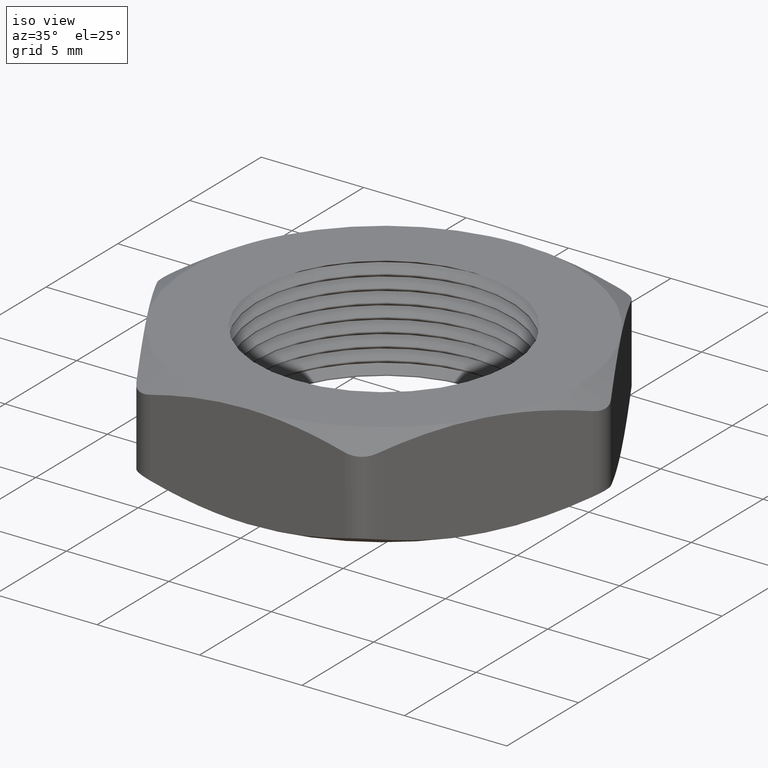
[diagram: clean part render]
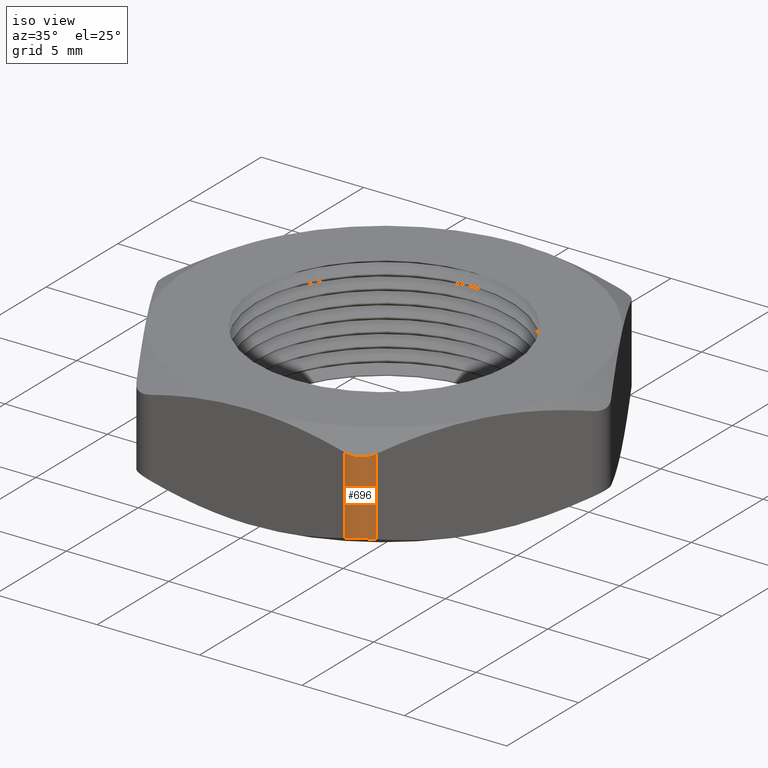
[diagram: same view with one face highlighted and labeled with its STEP entity id]
A machine part, iso view. The second image highlights one B-rep face of the part: STEP entity #696.
In plain terms, the highlighted cylindrical surface (edge-blend (fillet) strip) has radius 1.27 mm, axis along (0, 0, -1).
Its self-contained STEP definition (entity closure, byte-faithful):
#251 = EDGE_CURVE ( 'NONE', #369, #252, #1386, .T. ) ;
#252 = VERTEX_POINT ( 'NONE', #1275 ) ;
#301 = VERTEX_POINT ( 'NONE', #1411 ) ;
#304 = EDGE_CURVE ( 'NONE', #301, #305, #1368, .T. ) ;
#305 = VERTEX_POINT ( 'NONE', #1364 ) ;
#369 = VERTEX_POINT ( 'NONE', #1566 ) ;
#442 = EDGE_CURVE ( 'NONE', #305, #369, #1522, .T. ) ;
#526 = EDGE_CURVE ( 'NONE', #252, #301, #1799, .T. ) ;
#572 = ORIENTED_EDGE ( 'NONE', *, *, #526, .F. ) ;
#573 = ORIENTED_EDGE ( 'NONE', *, *, #251, .F. ) ;
#696 = ADVANCED_FACE ( 'NONE', ( #2045 ), #2044, .T. ) ;
#697 = EDGE_LOOP ( 'NONE', ( #698, #699, #572, #573 ) ) ;
#698 = ORIENTED_EDGE ( 'NONE', *, *, #442, .F. ) ;
#699 = ORIENTED_EDGE ( 'NONE', *, *, #304, .F. ) ;
#1275 = CARTESIAN_POINT ( 'NONE',  ( 0.2309401076758503000, -0.3499999999999999800, 0.02559096649278906600 ) ) ;
#1276 = DIRECTION ( 'NONE',  ( 0.0000000000000000000, 0.0000000000000000000, -1.000000000000000000 ) ) ;
#1364 = CARTESIAN_POINT ( 'NONE',  ( 0.1876388374866283500, -0.3749999999999998900, 0.1744090335072107600 ) ) ;
#1365 = DIRECTION ( 'NONE',  ( 0.0000000000000000000, 0.0000000000000000000, 1.000000000000000000 ) ) ;
#1366 = VECTOR ( 'NONE', #1365, 39.37007874015748100 ) ;
#1367 = CARTESIAN_POINT ( 'NONE',  ( 0.1876388374866283800, -0.3749999999999998900, 0.2000000000000000100 ) ) ;
#1368 = LINE ( 'NONE', #1367, #1366 ) ;
#1384 = VECTOR ( 'NONE', #1276, 39.37007874015748100 ) ;
#1385 = CARTESIAN_POINT ( 'NONE',  ( 0.2309401076758503000, -0.3499999999999998700, 0.2000000000000000100 ) ) ;
#1386 = LINE ( 'NONE', #1385, #1384 ) ;
#1411 = CARTESIAN_POINT ( 'NONE',  ( 0.1876388374866284100, -0.3749999999999998900, 0.02559096649278926400 ) ) ;
#1510 = CARTESIAN_POINT ( 'NONE',  ( 0.2309401076758606800, -0.3499999999999819400, 0.1744090335072161200 ) ) ;
#1511 = CARTESIAN_POINT ( 'NONE',  ( 0.2287861771308885800, -0.3537307171398533800, 0.1732960898150902000 ) ) ;
#1512 = CARTESIAN_POINT ( 'NONE',  ( 0.2261130213296680400, -0.3572286145739261300, 0.1724288769662021300 ) ) ;
#1513 = CARTESIAN_POINT ( 'NONE',  ( 0.2199651329053765300, -0.3633921482108323800, 0.1712713809660493500 ) ) ;
#1514 = CARTESIAN_POINT ( 'NONE',  ( 0.2164103667094404200, -0.3661280705683248000, 0.1709702763353523300 ) ) ;
#1515 = CARTESIAN_POINT ( 'NONE',  ( 0.2087936671125942800, -0.3705169448226545100, 0.1709740837146801200 ) ) ;
#1516 = CARTESIAN_POINT ( 'NONE',  ( 0.2046846759807773900, -0.3722082976401340200, 0.1712740274009831600 ) ) ;
#1517 = CARTESIAN_POINT ( 'NONE',  ( 0.1962172436646588700, -0.3744529566708891800, 0.1724448371212618200 ) ) ;
#1518 = CARTESIAN_POINT ( 'NONE',  ( 0.1919454149677852800, -0.3749999999999998900, 0.1732964214377353500 ) ) ;
#1519 = CARTESIAN_POINT ( 'NONE',  ( 0.1876388374866283500, -0.3749999999999998900, 0.1744090335072107600 ) ) ;
#1522 = B_SPLINE_CURVE_WITH_KNOTS ( 'NONE', 3,
 ( #1519, #1518, #1517, #1516, #1515, #1514, #1513, #1512, #1511, #1510 ),
 .UNSPECIFIED., .F., .F.,
 ( 4, 2, 2, 2, 4 ),
 ( 8.673617379884035500E-019, 0.0003344051723305209100, 0.0006688103446610409600, 0.001003215516991561100, 0.001337620689322081100 ),
 .UNSPECIFIED. ) ;
#1566 = CARTESIAN_POINT ( 'NONE',  ( 0.2309401076758606800, -0.3499999999999819400, 0.1744090335072161200 ) ) ;
#1799 = B_SPLINE_CURVE_WITH_KNOTS ( 'NONE', 3,
 ( #1802, #1801, #1979, #1978, #1977, #1976, #1975, #1974, #1973, #1972 ),
 .UNSPECIFIED., .F., .F.,
 ( 4, 2, 2, 2, 4 ),
 ( 1.084202172485504400E-019, 0.0003344051723303850600, 0.0006688103446607700200, 0.001003215516991154800, 0.001337620689321539800 ),
 .UNSPECIFIED. ) ;
#1801 = CARTESIAN_POINT ( 'NONE',  ( 0.2287868189352726700, -0.3537296055020461800, 0.02670357856226415400 ) ) ;
#1802 = CARTESIAN_POINT ( 'NONE',  ( 0.2309401076758503000, -0.3499999999999999800, 0.02559096649278906600 ) ) ;
#1972 = CARTESIAN_POINT ( 'NONE',  ( 0.1876388374866284100, -0.3749999999999998900, 0.02559096649278926400 ) ) ;
#1973 = CARTESIAN_POINT ( 'NONE',  ( 0.1919466985765830300, -0.3750000000000001700, 0.02670391018491561800 ) ) ;
#1974 = CARTESIAN_POINT ( 'NONE',  ( 0.1963125445149233900, -0.3744339278849049300, 0.02757112303380092300 ) ) ;
#1975 = CARTESIAN_POINT ( 'NONE',  ( 0.2047242654337058400, -0.3721914671482875500, 0.02872861903395187300 ) ) ;
#1976 = CARTESIAN_POINT ( 'NONE',  ( 0.2088710267960420800, -0.3704809104968383400, 0.02902972366464816300 ) ) ;
#1977 = CARTESIAN_POINT ( 'NONE',  ( 0.2164802531927261000, -0.3660790922801400700, 0.02902591628531943000 ) ) ;
#1978 = CARTESIAN_POINT ( 'NONE',  ( 0.2199995032653325500, -0.3633662779848019800, 0.02872597259901610300 ) ) ;
#1979 = CARTESIAN_POINT ( 'NONE',  ( 0.2261771511668565200, -0.3571555960095975600, 0.02755516287873747600 ) ) ;
#2040 = DIRECTION ( 'NONE',  ( -1.000000000000000000, 0.0000000000000000000, 0.0000000000000000000 ) ) ;
#2041 = DIRECTION ( 'NONE',  ( 0.0000000000000000000, 0.0000000000000000000, -1.000000000000000000 ) ) ;
#2042 = AXIS2_PLACEMENT_3D ( 'NONE', #2049, #2041, #2040 ) ;
#2044 = CYLINDRICAL_SURFACE ( 'NONE', #2042, 0.05000000000000001000 ) ;
#2045 = FACE_OUTER_BOUND ( 'NONE', #697, .T. ) ;
#2049 = CARTESIAN_POINT ( 'NONE',  ( 0.1876388374866283800, -0.3249999999999999000, 0.2000000000000000100 ) ) ;